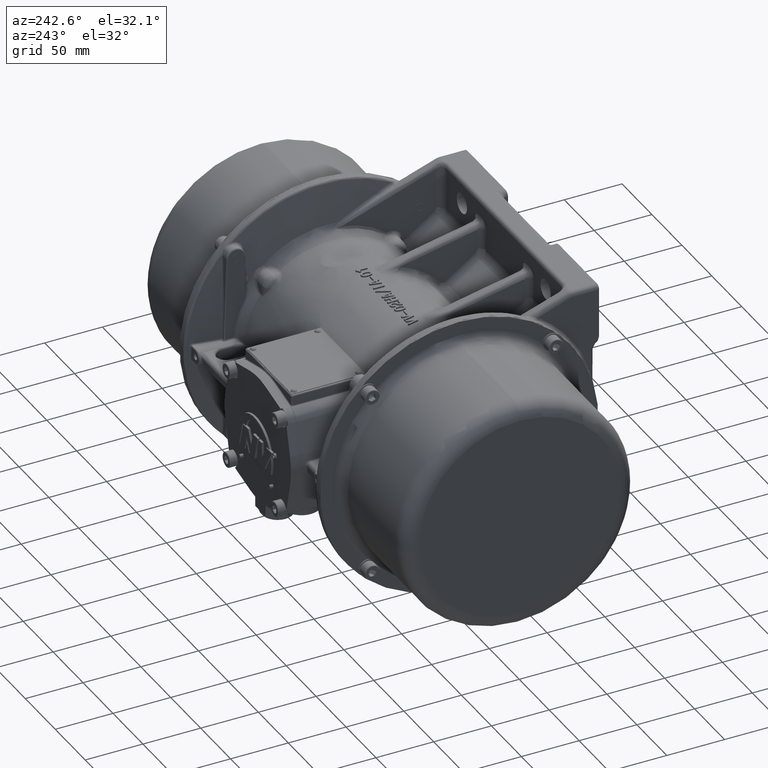
[diagram: clean part render]
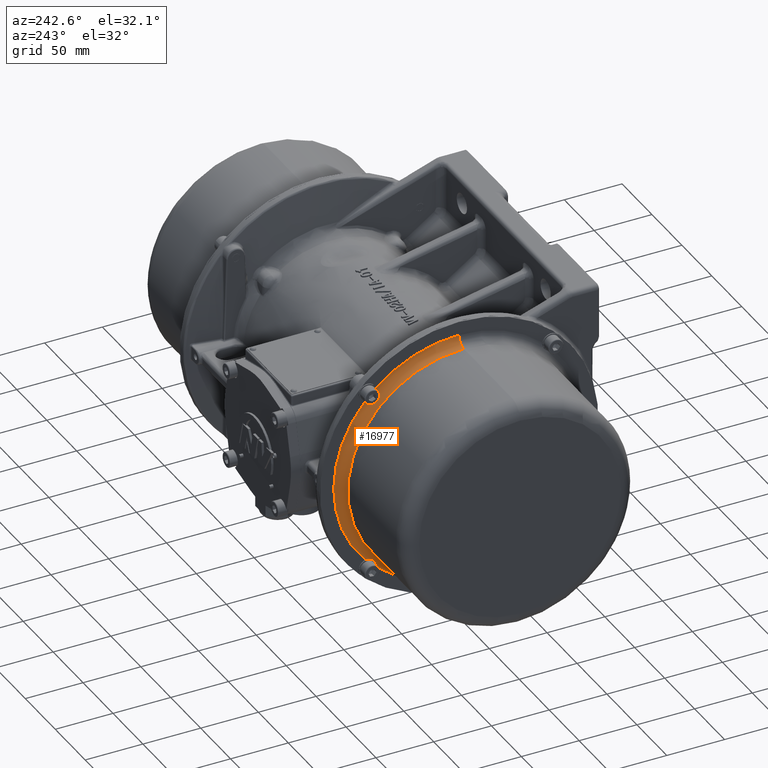
[diagram: same view with one face highlighted and labeled with its STEP entity id]
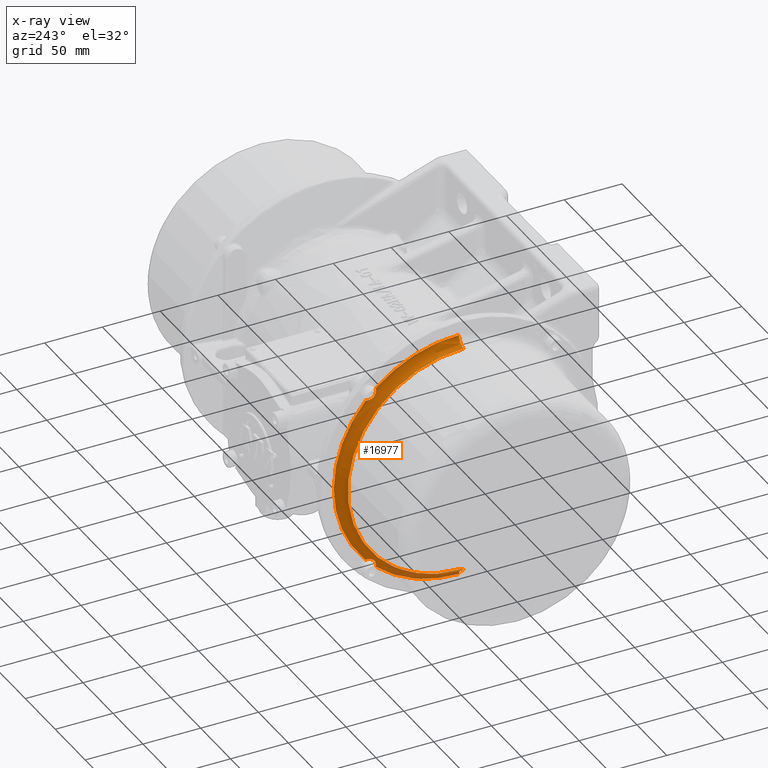
[diagram: x-ray of the same camera — body ghosted, the highlighted face saturated]
A machine part, auxiliary view. The second image highlights one B-rep face of the part: STEP entity #16977.
The next image is the same camera in x-ray: the body ghosted, the highlighted face saturated — about 9% of this face is hidden behind the body in this view.
In plain terms, the highlighted toroidal blend (fillet) surface has major radius 108.5 mm and minor (blend) radius 8 mm.
Its self-contained STEP definition (entity closure, byte-faithful):
#6 = CARTESIAN_POINT ( 'NONE',  ( -122.5613321759554000, 108.2513363668461900, -80.72937766513649600 ) ) ;
#124 = CARTESIAN_POINT ( 'NONE',  ( -123.3354597213276500, 111.1293194311671300, 73.55000624773522600 ) ) ;
#167 = VERTEX_POINT ( 'NONE', #87462 ) ;
#292 = CARTESIAN_POINT ( 'NONE',  ( -122.5579501043699900, 108.6750303481876000, -80.66188371163390500 ) ) ;
#311 = CARTESIAN_POINT ( 'NONE',  ( -122.5579501043699900, 117.0123286705273700, 72.26510747663309100 ) ) ;
#349 = DIRECTION ( 'NONE',  ( 1.000000000000000000, -6.427852285303269600E-024, 1.572670343229675200E-024 ) ) ;
#491 = CARTESIAN_POINT ( 'NONE',  ( -123.2297239065619200, 109.1315925297409300, -75.85402051819363600 ) ) ;
#659 = CARTESIAN_POINT ( 'NONE',  ( -123.0777003674439700, 108.6769675464618200, -76.79996322004755900 ) ) ;
#798 = DIRECTION ( 'NONE',  ( 0.0000000000000000000, -3.339511258819159000E-013, 1.000000000000000000 ) ) ;
#1159 = EDGE_CURVE ( 'NONE', #195588, #30115, #26000, .T. ) ;
#1414 = CIRCLE ( 'NONE', #27655, 100.5000000000000000 ) ;
#2177 = CARTESIAN_POINT ( 'NONE',  ( -122.5579501043699900, 117.0011610117190100, 72.30917750026169700 ) ) ;
#2871 = CARTESIAN_POINT ( 'NONE',  ( -123.3579501043700000, 110.0629849122629900, 74.55487871149699700 ) ) ;
#5145 = ORIENTED_EDGE ( 'NONE', *, *, #82224, .F. ) ;
#6796 = CARTESIAN_POINT ( 'NONE',  ( -122.5579501043699800, 117.0827364345335200, 72.18605002484682100 ) ) ;
#7011 = CARTESIAN_POINT ( 'NONE',  ( -122.5579501043699900, 116.0712988640120100, -73.33614846653719600 ) ) ;
#8122 = DIRECTION ( 'NONE',  ( 0.0000000000000000000, -7.546446826369151700E-015, 1.000000000000000000 ) ) ;
#8616 = CARTESIAN_POINT ( 'NONE',  ( -123.2197845788611200, 110.3270893576449400, -74.71648922973716400 ) ) ;
#8846 = CARTESIAN_POINT ( 'NONE',  ( -122.8703597378881700, 108.3106062283509600, 77.96833268359702600 ) ) ;
#9354 = EDGE_CURVE ( 'NONE', #80650, #85221, #69789, .T. ) ;
#9707 = CARTESIAN_POINT ( 'NONE',  ( -123.3195652554795600, 110.7686448890364900, 73.96215836678423700 ) ) ;
#9742 = DIRECTION ( 'NONE',  ( 0.0000000000000000000, -7.546446826369151700E-015, 1.000000000000000000 ) ) ;
#10825 = ORIENTED_EDGE ( 'NONE', *, *, #103260, .F. ) ;
#11093 = ORIENTED_EDGE ( 'NONE', *, *, #111091, .F. ) ;
#11134 = EDGE_CURVE ( 'NONE', #25755, #151514, #191234, .T. ) ;
#11506 = DIRECTION ( 'NONE',  ( 6.427852285303257800E-024, 1.000000000000000000, 7.521760991835440300E-015 ) ) ;
#12247 = ORIENTED_EDGE ( 'NONE', *, *, #162262, .F. ) ;
#12815 = VERTEX_POINT ( 'NONE', #162184 ) ;
#13177 = CARTESIAN_POINT ( 'NONE',  ( -122.5613321759554000, 116.8378143486718000, 72.14289968331080200 ) ) ;
#13249 = CARTESIAN_POINT ( 'NONE',  ( -123.3354597213276500, 109.6584429312705100, -75.02088274763185900 ) ) ;
#13428 = CARTESIAN_POINT ( 'NONE',  ( -123.1854683903486300, 112.2621278307402300, -72.85792781990127800 ) ) ;
#14576 = B_SPLINE_CURVE_WITH_KNOTS ( 'NONE', 3,
 ( #154886, #17404, #63689, #170982 ),
 .UNSPECIFIED., .F., .F.,
 ( 4, 4 ),
 ( 0.005990977083338102700, 0.006953269603852226700 ),
 .UNSPECIFIED. ) ;
#14754 = CARTESIAN_POINT ( 'NONE',  ( -122.7021810027953400, 115.1508916833719700, 72.05479074414938600 ) ) ;
#15383 = CARTESIAN_POINT ( 'NONE',  ( -122.5717823546717800, 108.1841467832871800, -80.30759436908324700 ) ) ;
#15565 = VERTEX_POINT ( 'NONE', #7011 ) ;
#15666 = DIRECTION ( 'NONE',  ( -6.427852285303257800E-024, -1.000000000000000000, -7.399296311920705100E-015 ) ) ;
#16043 = CARTESIAN_POINT ( 'NONE',  ( -123.1744306905771400, 108.9330873650279600, -76.22230043103246500 ) ) ;
#16512 = CARTESIAN_POINT ( 'NONE',  ( -122.5579501043699800, 108.5338275814955600, -80.68437714648536000 ) ) ;
#16977 = ADVANCED_FACE ( 'NONE', ( #175269 ), #84038, .F. ) ;
#17404 = CARTESIAN_POINT ( 'NONE',  ( -122.5722820407507800, 116.4740746370359700, -72.08722828413618800 ) ) ;
#19060 = VERTEX_POINT ( 'NONE', #158795 ) ;
#19294 = EDGE_CURVE ( 'NONE', #33399, #189183, #155827, .T. ) ;
#19648 = CARTESIAN_POINT ( 'NONE',  ( -130.5579501043699800, 36.10843668353531700, -100.5000000000000300 ) ) ;
#20050 = B_SPLINE_CURVE_WITH_KNOTS ( 'NONE', 3,
 ( #134947, #27692, #58521, #165834, #73966, #181245 ),
 .UNSPECIFIED., .F., .F.,
 ( 4, 2, 4 ),
 ( 1.469623195646913200E-006, 0.0006863908567234843000, 0.001371312090251321600 ),
 .UNSPECIFIED. ) ;
#20052 = B_SPLINE_CURVE_WITH_KNOTS ( 'NONE', 3,
 ( #89940, #74495, #166354, #105365, #13428, #120776, #28907, #136162, #44289, #151595, #59748, #167028, #75162, #182473 ),
 .UNSPECIFIED., .F., .F.,
 ( 4, 2, 2, 2, 2, 2, 4 ),
 ( 6.759244171246788800E-006, 0.001465545043678568500, 0.002194937943432229600, 0.002924330843185890200, 0.004383116642693250500, 0.005112509542446928000, 0.005841902442200604600 ),
 .UNSPECIFIED. ) ;
#21239 = EDGE_CURVE ( 'NONE', #179808, #135285, #90609, .T. ) ;
#22031 = VERTEX_POINT ( 'NONE', #149826 ) ;
#23272 = AXIS2_PLACEMENT_3D ( 'NONE', #193561, #101634, #9742 ) ;
#23736 = CARTESIAN_POINT ( 'NONE',  ( -122.5579501043699900, 108.3735441601685600, -80.90389198699219300 ) ) ;
#24317 = CARTESIAN_POINT ( 'NONE',  ( -122.7210856310092600, 108.1796978558058700, 78.92898080482778800 ) ) ;
#24440 = CARTESIAN_POINT ( 'NONE',  ( -122.5579501043699900, 36.10843668353454900, -2.428612866556249800E-014 ) ) ;
#25131 = CARTESIAN_POINT ( 'NONE',  ( -123.2856165839070900, 110.7877863159157500, 74.04664813753129200 ) ) ;
#25678 = VERTEX_POINT ( 'NONE', #79686 ) ;
#25751 = CARTESIAN_POINT ( 'NONE',  ( -122.5579501043699800, 116.0994704469050600, -72.91268019891870700 ) ) ;
#25755 = VERTEX_POINT ( 'NONE', #72792 ) ;
#26000 = B_SPLINE_CURVE_WITH_KNOTS ( 'NONE', 3,
 ( #161779, #54472, #130932, #69926, #177214, #85346, #192692, #100786, #8846, #116164, #24317, #131597, #39721, #146996 ),
 .UNSPECIFIED., .F., .F.,
 ( 4, 2, 2, 2, 2, 2, 4 ),
 ( 6.759244171277499700E-006, 0.001465545043678657200, 0.002194937943432329300, 0.002924330843186001600, 0.004383116642693358900, 0.005112509542447054600, 0.005841902442200751200 ),
 .UNSPECIFIED. ) ;
#26427 = DIRECTION ( 'NONE',  ( 1.000000000000000000, -6.427852285303269600E-024, 1.572670343229675200E-024 ) ) ;
#27031 = CARTESIAN_POINT ( 'NONE',  ( -122.5579501043699900, 108.2992301008276000, -80.99839100736331000 ) ) ;
#27655 = AXIS2_PLACEMENT_3D ( 'NONE', #172278, #80383, #187721 ) ;
#27692 = CARTESIAN_POINT ( 'NONE',  ( -122.5928829201739200, 108.3936807646759800, 79.89079099879036500 ) ) ;
#28907 = CARTESIAN_POINT ( 'NONE',  ( -123.0743223660969200, 112.9281205634740800, -72.55978107281946200 ) ) ;
#28970 = VERTEX_POINT ( 'NONE', #86577 ) ;
#30115 = VERTEX_POINT ( 'NONE', #59741 ) ;
#30171 = CARTESIAN_POINT ( 'NONE',  ( -122.9012599152060700, 113.9037947759092600, 72.24554316488381300 ) ) ;
#30618 = DIRECTION ( 'NONE',  ( 1.000000000000000000, -6.427852285303269600E-024, 1.572670343229675200E-024 ) ) ;
#31463 = AXIS2_PLACEMENT_3D ( 'NONE', #118275, #26427, #133676 ) ;
#31518 = CARTESIAN_POINT ( 'NONE',  ( -123.2297239065619200, 109.1315925297409300, -75.85402051819363600 ) ) ;
#33399 = VERTEX_POINT ( 'NONE', #2177 ) ;
#33704 = EDGE_CURVE ( 'NONE', #30115, #25678, #20050, .T. ) ;
#36186 = CARTESIAN_POINT ( 'NONE',  ( -122.5613321759554000, 116.8378143486718000, 72.14289968331080200 ) ) ;
#36811 = VERTEX_POINT ( 'NONE', #68289 ) ;
#37254 = EDGE_CURVE ( 'NONE', #167, #15565, #91081, .T. ) ;
#37659 = CARTESIAN_POINT ( 'NONE',  ( -122.5582004276956000, 117.0344220635460000, 72.17690659627079700 ) ) ;
#38849 = CARTESIAN_POINT ( 'NONE',  ( -123.3541389122857900, 109.9873616924969900, -74.64090481629510500 ) ) ;
#39147 = CARTESIAN_POINT ( 'NONE',  ( -122.5579501043699900, 108.4176141837970000, -80.89272432818370400 ) ) ;
#39721 = CARTESIAN_POINT ( 'NONE',  ( -122.6308901307638500, 108.1548328666856900, 79.65777428889615000 ) ) ;
#39844 = DIRECTION ( 'NONE',  ( 0.0000000000000000000, -7.546446826369151700E-015, 1.000000000000000000 ) ) ;
#39910 = CARTESIAN_POINT ( 'NONE',  ( -123.3366998761199500, 110.7590252778121000, 73.92046944600318200 ) ) ;
#40555 = CARTESIAN_POINT ( 'NONE',  ( -123.2523588640946000, 110.8065866760744000, 74.13245043888029800 ) ) ;
#40782 = AXIS2_PLACEMENT_3D ( 'NONE', #24440, #131714, #39844 ) ;
#41151 = B_SPLINE_CURVE_WITH_KNOTS ( 'NONE', 3,
 ( #83257, #6796, #129545, #37659 ),
 .UNSPECIFIED., .F., .F.,
 ( 4, 4 ),
 ( 0.003771163714130047800, 0.003844048060589315800 ),
 .UNSPECIFIED. ) ;
#42742 = CARTESIAN_POINT ( 'NONE',  ( -123.2040369804889900, 110.8336397838234000, 74.26204560221040700 ) ) ;
#44289 = CARTESIAN_POINT ( 'NONE',  ( -122.8703597378881500, 114.0767693671322600, -72.20216954481568900 ) ) ;
#44469 = CIRCLE ( 'NONE', #151038, 7.999999999999992900 ) ;
#45580 = CARTESIAN_POINT ( 'NONE',  ( -123.0777003674439000, 112.9083999035827900, 72.56853086292650800 ) ) ;
#46105 = B_SPLINE_CURVE_WITH_KNOTS ( 'NONE', 3,
 ( #135648, #98804, #145015, #53174, #160476, #68586 ),
 .UNSPECIFIED., .F., .F.,
 ( 4, 2, 4 ),
 ( 1.469623195689275200E-006, 0.0006863908567235234400, 0.001371312090251357600 ),
 .UNSPECIFIED. ) ;
#47339 = CARTESIAN_POINT ( 'NONE',  ( -122.5590823514748400, 108.3925961304997700, -80.70687515071273300 ) ) ;
#47942 = B_SPLINE_CURVE_WITH_KNOTS ( 'NONE', 3,
 ( #58137, #58803, #197048, #13177 ),
 .UNSPECIFIED., .F., .F.,
 ( 4, 4 ),
 ( 0.001783121889424923800, 0.002211930208980994400 ),
 .UNSPECIFIED. ) ;
#48319 = CARTESIAN_POINT ( 'NONE',  ( -122.5579501043699800, 109.0211168824539400, 79.99103376336985600 ) ) ;
#48394 = CARTESIAN_POINT ( 'NONE',  ( -122.5579501043699900, 109.4445851500724100, 79.96286218047670500 ) ) ;
#49283 = VERTEX_POINT ( 'NONE', #48394 ) ;
#49300 = CARTESIAN_POINT ( 'NONE',  ( -122.5582004276957900, 108.2853432798062000, -80.92598538001071500 ) ) ;
#49324 = B_SPLINE_CURVE_WITH_KNOTS ( 'NONE', 3,
 ( #89769, #105195, #13249, #120608 ),
 .UNSPECIFIED., .F., .F.,
 ( 4, 4 ),
 ( 0.009111289017836874200, 0.01060359311310200700 ),
 .UNSPECIFIED. ) ;
#52551 = CARTESIAN_POINT ( 'NONE',  ( -123.3579501043700000, 110.6058729452892100, 74.01241202546459900 ) ) ;
#53174 = CARTESIAN_POINT ( 'NONE',  ( -122.5625711872326800, 115.9855577351257500, -72.96936408149713300 ) ) ;
#53942 = VERTEX_POINT ( 'NONE', #139707 ) ;
#54472 = CARTESIAN_POINT ( 'NONE',  ( -123.3434474690855800, 109.7341098292494100, 74.92328296332594600 ) ) ;
#55322 = CARTESIAN_POINT ( 'NONE',  ( -123.3541389122857900, 110.7493414998303900, 73.87892500896158800 ) ) ;
#55519 = DIRECTION ( 'NONE',  ( 1.000000000000000000, -8.000522628532879900E-024, -4.855181942073610000E-024 ) ) ;
#55709 = EDGE_CURVE ( 'NONE', #36811, #169177, #130758, .T. ) ;
#55953 = CARTESIAN_POINT ( 'NONE',  ( -123.2197845788611200, 110.8249259132723800, 74.21865267410972000 ) ) ;
#56581 = CARTESIAN_POINT ( 'NONE',  ( -122.5711323131754800, 116.1276350909211700, -72.48931623478442500 ) ) ;
#58137 = CARTESIAN_POINT ( 'NONE',  ( -122.5579501043699900, 116.7703203951689900, 72.56659366465220300 ) ) ;
#58350 = VERTEX_POINT ( 'NONE', #120208 ) ;
#58521 = CARTESIAN_POINT ( 'NONE',  ( -122.5800147580662600, 108.6215971848610900, 79.88457705412587000 ) ) ;
#58803 = CARTESIAN_POINT ( 'NONE',  ( -122.5579501043699800, 116.7928138300205500, 72.42539089796017000 ) ) ;
#59741 = CARTESIAN_POINT ( 'NONE',  ( -122.6095535024144000, 108.1661125643616000, 79.89933901970781000 ) ) ;
#59748 = CARTESIAN_POINT ( 'NONE',  ( -122.7210856310092900, 115.0374174883630300, -72.07126117227062400 ) ) ;
#61012 = CARTESIAN_POINT ( 'NONE',  ( -123.1744306905771000, 112.3307371145676500, 72.82465068149271300 ) ) ;
#61303 = CARTESIAN_POINT ( 'NONE',  ( -122.5582004276956000, 117.0344220635460000, 72.17690659627079700 ) ) ;
#61674 = CARTESIAN_POINT ( 'NONE',  ( -122.6055289246889400, 108.1536401323828600, -79.88612475557140200 ) ) ;
#62754 = CARTESIAN_POINT ( 'NONE',  ( -122.5579501043699800, 108.2370526636515000, 80.68259749115485100 ) ) ;
#63689 = CARTESIAN_POINT ( 'NONE',  ( -122.5579501043699800, 116.7910341746901700, -72.12861598011620900 ) ) ;
#63762 = EDGE_CURVE ( 'NONE', #112316, #22031, #41151, .T. ) ;
#63764 = CARTESIAN_POINT ( 'NONE',  ( -122.5711323131754800, 108.5977529183197100, 80.01919840738597100 ) ) ;
#64284 = EDGE_CURVE ( 'NONE', #144332, #19060, #1414, .T. ) ;
#64699 = CARTESIAN_POINT ( 'NONE',  ( -122.5579501043699800, 108.2944867083821200, -80.97429975099825600 ) ) ;
#64714 = EDGE_CURVE ( 'NONE', #25755, #144332, #44469, .T. ) ;
#66829 = CARTESIAN_POINT ( 'NONE',  ( -122.5579501043699900, 36.10843668353454900, -2.428612866556249800E-014 ) ) ;
#66858 = CARTESIAN_POINT ( 'NONE',  ( -123.3579501043700000, 110.1208487089999900, -74.49743626175400400 ) ) ;
#67832 = CIRCLE ( 'NONE', #72883, 108.5000000000000000 ) ;
#68289 = CARTESIAN_POINT ( 'NONE',  ( -123.2297239065619000, 111.9624572017288500, 73.02315584620568200 ) ) ;
#68402 = EDGE_CURVE ( 'NONE', #109810, #70671, #67832, .T. ) ;
#68586 = CARTESIAN_POINT ( 'NONE',  ( -122.5579501043699900, 115.9888974826324000, -73.42589449590509800 ) ) ;
#68709 = ORIENTED_EDGE ( 'NONE', *, *, #162664, .F. ) ;
#69706 = CARTESIAN_POINT ( 'NONE',  ( -123.3027505675780000, 110.1124426119524000, -74.66968890398089800 ) ) ;
#69760 = CIRCLE ( 'NONE', #129300, 108.5000000000000000 ) ;
#69789 = B_SPLINE_CURVE_WITH_KNOTS ( 'NONE', 3,
 ( #49300, #142527, #23736, #39147 ),
 .UNSPECIFIED., .F., .F.,
 ( 4, 4 ),
 ( 2.664056320315654000E-006, 0.0001390530303113183300 ),
 .UNSPECIFIED. ) ;
#69926 = CARTESIAN_POINT ( 'NONE',  ( -123.2183372329011900, 109.0792867546673500, 75.93986353227485600 ) ) ;
#70386 = DIRECTION ( 'NONE',  ( 1.000000000000000000, -6.427852285303269600E-024, 1.572670343229675200E-024 ) ) ;
#70671 = VERTEX_POINT ( 'NONE', #120102 ) ;
#71510 = VERTEX_POINT ( 'NONE', #182585 ) ;
#72792 = CARTESIAN_POINT ( 'NONE',  ( -122.5579501043699800, 36.10843668353535200, -108.5000000000000300 ) ) ;
#72833 = EDGE_CURVE ( 'NONE', #15565, #71510, #124172, .T. ) ;
#72883 = AXIS2_PLACEMENT_3D ( 'NONE', #162258, #70386, #177698 ) ;
#73966 = CARTESIAN_POINT ( 'NONE',  ( -122.5579501043699900, 109.3060012182699600, 79.87502932777229600 ) ) ;
#74054 = ORIENTED_EDGE ( 'NONE', *, *, #139507, .F. ) ;
#74495 = CARTESIAN_POINT ( 'NONE',  ( -123.3434474690855000, 111.0317196468612200, -73.62567314571411700 ) ) ;
#74848 = CIRCLE ( 'NONE', #31463, 108.5000000000000000 ) ;
#75162 = CARTESIAN_POINT ( 'NONE',  ( -122.6308901307638700, 115.7662109724313700, -72.04639618315039200 ) ) ;
#76457 = CARTESIAN_POINT ( 'NONE',  ( -123.2297239065619000, 111.9624572017288500, 73.02315584620568200 ) ) ;
#76568 = CARTESIAN_POINT ( 'NONE',  ( -123.2912095676211000, 111.5339865797762300, 73.26577357354312900 ) ) ;
#77115 = CARTESIAN_POINT ( 'NONE',  ( -122.7656191838988200, 108.2041989000963000, -78.61858126582883700 ) ) ;
#78007 = CARTESIAN_POINT ( 'NONE',  ( -123.3541389122857900, 110.7493414998303900, 73.87892500896158800 ) ) ;
#79686 = CARTESIAN_POINT ( 'NONE',  ( -122.5579501043699900, 109.5343311794403900, 79.88046079909720700 ) ) ;
#79874 = ORIENTED_EDGE ( 'NONE', *, *, #180880, .F. ) ;
#80090 = CARTESIAN_POINT ( 'NONE',  ( -123.2527229170104400, 110.7569294865562900, 74.17797073862067200 ) ) ;
#80383 = DIRECTION ( 'NONE',  ( 1.000000000000000000, -6.427852285303269600E-024, 1.572670343229675200E-024 ) ) ;
#80554 = CARTESIAN_POINT ( 'NONE',  ( -122.5579501043699900, 108.2992301008266100, 80.99839100736430500 ) ) ;
#80650 = VERTEX_POINT ( 'NONE', #123658 ) ;
#82214 = DIRECTION ( 'NONE',  ( 0.0000000000000000000, -7.546446826369151700E-015, 1.000000000000000000 ) ) ;
#82224 = EDGE_CURVE ( 'NONE', #71510, #28970, #14576, .T. ) ;
#83257 = CARTESIAN_POINT ( 'NONE',  ( -122.5579501043699900, 117.1068276908986000, 72.19079341729229800 ) ) ;
#84038 = TOROIDAL_SURFACE ( 'NONE', #148633, 108.5000000000000000, 8.000000000000000000 ) ;
#84072 = B_SPLINE_CURVE_WITH_KNOTS ( 'NONE', 3,
 ( #38849, #130705, #161562, #69706, #176981, #85115, #192465, #100547, #8616, #115942 ),
 .UNSPECIFIED., .F., .F.,
 ( 4, 3, 3, 4 ),
 ( 3.170456805018763300E-006, 0.0001414257333477838200, 0.0002823071896710504400, 0.0004232412225506872800 ),
 .UNSPECIFIED. ) ;
#84629 = B_SPLINE_CURVE_WITH_KNOTS ( 'NONE', 3,
 ( #171951, #64699, #187429, #95534 ),
 .UNSPECIFIED., .F., .F.,
 ( 4, 4 ),
 ( 0.003771163714130165700, 0.003844048060589389500 ),
 .UNSPECIFIED. ) ;
#85115 = CARTESIAN_POINT ( 'NONE',  ( -123.2688135342773600, 110.1978949028660400, -74.68886699974800100 ) ) ;
#85221 = VERTEX_POINT ( 'NONE', #132976 ) ;
#85346 = CARTESIAN_POINT ( 'NONE',  ( -123.1134889379072300, 108.7607961120078400, 76.59346989567505700 ) ) ;
#86385 = EDGE_CURVE ( 'NONE', #185817, #187998, #141468, .T. ) ;
#86427 = ORIENTED_EDGE ( 'NONE', *, *, #158578, .F. ) ;
#86577 = CARTESIAN_POINT ( 'NONE',  ( -122.5579501043699900, 117.1068276908995900, -72.19079341729118900 ) ) ;
#87462 = CARTESIAN_POINT ( 'NONE',  ( -122.5579501043699900, 115.9888974826324000, -73.42589449590509800 ) ) ;
#87976 = ORIENTED_EDGE ( 'NONE', *, *, #19294, .F. ) ;
#89769 = CARTESIAN_POINT ( 'NONE',  ( -123.2297239065619200, 109.1315925297409300, -75.85402051819363600 ) ) ;
#89940 = CARTESIAN_POINT ( 'NONE',  ( -123.3579501043700000, 110.6633153950322000, -73.95454822872760300 ) ) ;
#90609 = CIRCLE ( 'NONE', #169545, 105.0128808451674200 ) ;
#91081 = CIRCLE ( 'NONE', #23272, 108.5000000000000000 ) ;
#91246 = CARTESIAN_POINT ( 'NONE',  ( -122.5613321759554000, 116.8378143486718000, 72.14289968331080200 ) ) ;
#92227 = CARTESIAN_POINT ( 'NONE',  ( -122.5579501043699900, 36.10843668353454900, -2.428612866556249800E-014 ) ) ;
#92539 = CARTESIAN_POINT ( 'NONE',  ( -122.9738486413220600, 108.4625180626973000, -77.39259407208797400 ) ) ;
#92676 = DIRECTION ( 'NONE',  ( 1.000000000000000000, -0.0000000000000000000, -0.0000000000000000000 ) ) ;
#93087 = ORIENTED_EDGE ( 'NONE', *, *, #9354, .F. ) ;
#94824 = EDGE_CURVE ( 'NONE', #12815, #58350, #84072, .T. ) ;
#95000 = CARTESIAN_POINT ( 'NONE',  ( -122.5972126986218200, 108.1744910102812000, 80.04735626203441300 ) ) ;
#95238 = EDGE_CURVE ( 'NONE', #58350, #179808, #197188, .T. ) ;
#95534 = CARTESIAN_POINT ( 'NONE',  ( -122.5582004276957900, 108.2853432798062000, -80.92598538001071500 ) ) ;
#95547 = CARTESIAN_POINT ( 'NONE',  ( -123.3040262920500100, 110.6810069062194900, 74.09475921666597700 ) ) ;
#97167 = EDGE_CURVE ( 'NONE', #70671, #19060, #115028, .T. ) ;
#97429 = EDGE_CURVE ( 'NONE', #187998, #195588, #172602, .T. ) ;
#98804 = CARTESIAN_POINT ( 'NONE',  ( -122.5928829201740200, 115.9992276823258400, -72.28524408114070400 ) ) ;
#100057 = DIRECTION ( 'NONE',  ( 1.000000000000000000, -6.427852285303269600E-024, 1.572670343229675200E-024 ) ) ;
#100547 = CARTESIAN_POINT ( 'NONE',  ( -123.2358982125663000, 110.2838949698285900, -74.70743635973983000 ) ) ;
#100786 = CARTESIAN_POINT ( 'NONE',  ( -122.9543781059525000, 108.4265181413234600, 77.50264497616134900 ) ) ;
#100839 = CARTESIAN_POINT ( 'NONE',  ( -123.3579501043700000, 110.6058729452892100, 74.01241202546459900 ) ) ;
#101634 = DIRECTION ( 'NONE',  ( 1.000000000000000000, -6.427852285303269600E-024, 1.572670343229675200E-024 ) ) ;
#101880 = B_SPLINE_CURVE_WITH_KNOTS ( 'NONE', 3,
 ( #140183, #48319, #63764, #171048 ),
 .UNSPECIFIED., .F., .F.,
 ( 4, 4 ),
 ( 0.0009380970038950086000, 0.002211269880252528900 ),
 .UNSPECIFIED. ) ;
#102687 = ORIENTED_EDGE ( 'NONE', *, *, #164422, .F. ) ;
#103260 = EDGE_CURVE ( 'NONE', #135285, #115434, #20052, .T. ) ;
#103437 = CARTESIAN_POINT ( 'NONE',  ( -130.5579501043699800, 36.10843668353373200, 108.4999999999999700 ) ) ;
#105195 = CARTESIAN_POINT ( 'NONE',  ( -123.2912095676211400, 109.3742102570784000, -75.42554989624098000 ) ) ;
#105365 = CARTESIAN_POINT ( 'NONE',  ( -123.2183372329012300, 112.0483002158101200, -72.97085007113207700 ) ) ;
#106289 = CARTESIAN_POINT ( 'NONE',  ( -122.5580331538076800, 117.0234136553509600, 72.22101635204370500 ) ) ;
#106409 = ORIENTED_EDGE ( 'NONE', *, *, #196865, .F. ) ;
#106643 = CARTESIAN_POINT ( 'NONE',  ( -122.6055289246889300, 115.9945614391067200, 72.04520344884755900 ) ) ;
#106918 = B_SPLINE_CURVE_WITH_KNOTS ( 'NONE', 3,
 ( #61303, #106289, #311, #107623 ),
 .UNSPECIFIED., .F., .F.,
 ( 4, 4 ),
 ( 2.664056320231490700E-006, 0.0001390530303113148000 ),
 .UNSPECIFIED. ) ;
#107433 = CARTESIAN_POINT ( 'NONE',  ( -123.3541389122857900, 110.7493414998303900, 73.87892500896158800 ) ) ;
#107605 = CARTESIAN_POINT ( 'NONE',  ( -130.5579501043699800, 36.10843668353535200, -108.5000000000000300 ) ) ;
#107623 = CARTESIAN_POINT ( 'NONE',  ( -122.5579501043699900, 117.0011610117190100, 72.30917750026169700 ) ) ;
#107652 = DIRECTION ( 'NONE',  ( 0.0000000000000000000, -7.546446826369151700E-015, 1.000000000000000000 ) ) ;
#107985 = CARTESIAN_POINT ( 'NONE',  ( -123.1115497601462600, 108.7574189590136200, -76.60387345078055400 ) ) ;
#108386 = CARTESIAN_POINT ( 'NONE',  ( -122.5972126986218200, 108.1744910102812000, 80.04735626203441300 ) ) ;
#109810 = VERTEX_POINT ( 'NONE', #80554 ) ;
#111091 = EDGE_CURVE ( 'NONE', #22031, #33399, #106918, .T. ) ;
#111787 = CARTESIAN_POINT ( 'NONE',  ( -123.2527229170104300, 110.2864074221560300, -74.64849280302104300 ) ) ;
#112224 = ORIENTED_EDGE ( 'NONE', *, *, #63762, .F. ) ;
#112316 = VERTEX_POINT ( 'NONE', #134476 ) ;
#112805 = ORIENTED_EDGE ( 'NONE', *, *, #37254, .F. ) ;
#112999 = AXIS2_PLACEMENT_3D ( 'NONE', #103437, #11506, #118831 ) ;
#114284 = EDGE_CURVE ( 'NONE', #49283, #174981, #101880, .T. ) ;
#115028 = CIRCLE ( 'NONE', #112999, 7.999999999999992900 ) ;
#115434 = VERTEX_POINT ( 'NONE', #116857 ) ;
#115942 = CARTESIAN_POINT ( 'NONE',  ( -123.2040369804887900, 110.3704822857456000, -74.72520310028819800 ) ) ;
#116164 = CARTESIAN_POINT ( 'NONE',  ( -122.7569539741658800, 108.2039762621429300, 78.68540744410411500 ) ) ;
#116593 = CARTESIAN_POINT ( 'NONE',  ( -122.5579501043699900, 116.7703203951689900, 72.56659366465220300 ) ) ;
#116857 = CARTESIAN_POINT ( 'NONE',  ( -122.6095535024144000, 116.0077757032430000, -72.05767588082630900 ) ) ;
#117003 = CARTESIAN_POINT ( 'NONE',  ( -123.3027505675780000, 110.7781255875162000, 74.00400592841720000 ) ) ;
#117603 = B_SPLINE_CURVE_WITH_KNOTS ( 'NONE', 3,
 ( #6, #15383, #61674, #168982, #77115, #184423, #92539, #659, #107985, #16043, #123377, #31518 ),
 .UNSPECIFIED., .F., .F.,
 ( 4, 2, 2, 2, 2, 4 ),
 ( 0.004041078303690509400, 0.005308630982227095600, 0.006576183660763681800, 0.007843736339300267200, 0.008477512678568570700, 0.009111289017836874200 ),
 .UNSPECIFIED. ) ;
#118275 = CARTESIAN_POINT ( 'NONE',  ( -122.5579501043699900, 36.10843668353454900, -2.428612866556249800E-014 ) ) ;
#118831 = DIRECTION ( 'NONE',  ( 0.0000000000000000000, -7.806255641895638200E-015, 1.000000000000000000 ) ) ;
#120102 = CARTESIAN_POINT ( 'NONE',  ( -122.5579501043699800, 36.10843668353373200, 108.4999999999999700 ) ) ;
#120208 = CARTESIAN_POINT ( 'NONE',  ( -123.2040369804887900, 110.3704822857456000, -74.72520310028819800 ) ) ;
#120608 = CARTESIAN_POINT ( 'NONE',  ( -123.3541389122857900, 109.9873616924969900, -74.64090481629510500 ) ) ;
#120776 = CARTESIAN_POINT ( 'NONE',  ( -123.1134889379072600, 112.7019065792102900, -72.65235942847256500 ) ) ;
#120898 = B_SPLINE_CURVE_WITH_KNOTS ( 'NONE', 3,
 ( #108386, #123780, #62754, #170047 ),
 .UNSPECIFIED., .F., .F.,
 ( 4, 4 ),
 ( 0.005990977083338057600, 0.006953269603852306500 ),
 .UNSPECIFIED. ) ;
#121400 = CARTESIAN_POINT ( 'NONE',  ( -122.5717823546717400, 116.4160310526184600, 72.07571009975184500 ) ) ;
#122090 = CARTESIAN_POINT ( 'NONE',  ( -122.7656191838987800, 114.7270179493641000, 72.09576221656104200 ) ) ;
#123001 = DIRECTION ( 'NONE',  ( 0.0000000000000000000, 7.806255641895638200E-015, -1.000000000000000000 ) ) ;
#123377 = CARTESIAN_POINT ( 'NONE',  ( -123.2036111609712600, 109.0285536279773200, -76.03599049544344300 ) ) ;
#123658 = CARTESIAN_POINT ( 'NONE',  ( -122.5582004276957900, 108.2853432798062000, -80.92598538001071500 ) ) ;
#123780 = CARTESIAN_POINT ( 'NONE',  ( -122.5722820407507900, 108.1956649676714800, 80.36563795350061000 ) ) ;
#123835 = CARTESIAN_POINT ( 'NONE',  ( -122.5579501043699900, 108.6750303481876000, -80.66188371163390500 ) ) ;
#124172 = B_SPLINE_CURVE_WITH_KNOTS ( 'NONE', 3,
 ( #133037, #25751, #56581, #163892 ),
 .UNSPECIFIED., .F., .F.,
 ( 4, 4 ),
 ( 0.0009380970038948249300, 0.002211269880252437400 ),
 .UNSPECIFIED. ) ;
#125096 = ORIENTED_EDGE ( 'NONE', *, *, #72833, .F. ) ;
#126707 = ORIENTED_EDGE ( 'NONE', *, *, #97167, .F. ) ;
#129300 = AXIS2_PLACEMENT_3D ( 'NONE', #66829, #174122, #82214 ) ;
#129545 = CARTESIAN_POINT ( 'NONE',  ( -122.5580339043414600, 117.0586012582767800, 72.18142087456413900 ) ) ;
#130705 = CARTESIAN_POINT ( 'NONE',  ( -123.3366998761200400, 110.0289061295385600, -74.65058859427686900 ) ) ;
#130758 = B_SPLINE_CURVE_WITH_KNOTS ( 'NONE', 3,
 ( #183851, #76568, #124, #107433 ),
 .UNSPECIFIED., .F., .F.,
 ( 4, 4 ),
 ( 0.009111289017836940100, 0.01060359311310198200 ),
 .UNSPECIFIED. ) ;
#130932 = CARTESIAN_POINT ( 'NONE',  ( -123.3039352448320300, 109.4482280194640300, 75.31597421575232000 ) ) ;
#131156 = ORIENTED_EDGE ( 'NONE', *, *, #86385, .F. ) ;
#131430 = ORIENTED_EDGE ( 'NONE', *, *, #68402, .F. ) ;
#131597 = CARTESIAN_POINT ( 'NONE',  ( -122.6580401792331300, 108.1551946763153200, 79.41543168820591300 ) ) ;
#131714 = DIRECTION ( 'NONE',  ( 1.000000000000000000, -6.427852285303269600E-024, 1.572670343229675200E-024 ) ) ;
#132428 = CARTESIAN_POINT ( 'NONE',  ( -123.2688135342771600, 110.7973036832831200, 74.08945821933075100 ) ) ;
#132976 = CARTESIAN_POINT ( 'NONE',  ( -122.5579501043699900, 108.4176141837970000, -80.89272432818370400 ) ) ;
#133037 = CARTESIAN_POINT ( 'NONE',  ( -122.5579501043699900, 116.0712988640120100, -73.33614846653719600 ) ) ;
#133676 = DIRECTION ( 'NONE',  ( 0.0000000000000000000, -7.546446826369151700E-015, 1.000000000000000000 ) ) ;
#134313 = CARTESIAN_POINT ( 'NONE',  ( -123.3579501043700000, 110.6633153950322000, -73.95454822872760300 ) ) ;
#134463 = EDGE_CURVE ( 'NONE', #115434, #167, #46105, .T. ) ;
#134476 = CARTESIAN_POINT ( 'NONE',  ( -122.5579501043699900, 117.1068276908986000, 72.19079341729229800 ) ) ;
#134947 = CARTESIAN_POINT ( 'NONE',  ( -122.6095535024144000, 108.1661125643616000, 79.89933901970781000 ) ) ;
#135285 = VERTEX_POINT ( 'NONE', #134313 ) ;
#135648 = CARTESIAN_POINT ( 'NONE',  ( -122.6095535024144000, 116.0077757032430000, -72.05767588082630900 ) ) ;
#136162 = CARTESIAN_POINT ( 'NONE',  ( -122.9543781059524900, 113.6110816596965900, -72.31808145778816800 ) ) ;
#137452 = CARTESIAN_POINT ( 'NONE',  ( -122.9738486413221100, 113.5010307556232300, 72.35408137916203900 ) ) ;
#137886 = DIRECTION ( 'NONE',  ( -1.572670343229723500E-024, -7.504726454011251000E-015, 1.000000000000000000 ) ) ;
#138895 = B_SPLINE_CURVE_WITH_KNOTS ( 'NONE', 3,
 ( #123835, #16512, #47339, #154654 ),
 .UNSPECIFIED., .F., .F.,
 ( 4, 4 ),
 ( 0.001783121889424839700, 0.002211930208980869000 ),
 .UNSPECIFIED. ) ;
#139507 = EDGE_CURVE ( 'NONE', #174981, #109810, #120898, .T. ) ;
#139707 = CARTESIAN_POINT ( 'NONE',  ( -122.5613321759554000, 108.2513363668461900, -80.72937766513649600 ) ) ;
#140183 = CARTESIAN_POINT ( 'NONE',  ( -122.5579501043699900, 109.4445851500724100, 79.96286218047670500 ) ) ;
#141468 = B_SPLINE_CURVE_WITH_KNOTS ( 'NONE', 3,
 ( #144408, #80090, #95547, #52551 ),
 .UNSPECIFIED., .F., .F.,
 ( 4, 4 ),
 ( 0.0001197512664345289900, 0.0004910681996110157500 ),
 .UNSPECIFIED. ) ;
#142527 = CARTESIAN_POINT ( 'NONE',  ( -122.5580331538076100, 108.3294530355791200, -80.91497697181576100 ) ) ;
#142570 = ORIENTED_EDGE ( 'NONE', *, *, #94824, .F. ) ;
#143489 = ORIENTED_EDGE ( 'NONE', *, *, #11134, .F. ) ;
#143918 = VERTEX_POINT ( 'NONE', #491 ) ;
#144332 = VERTEX_POINT ( 'NONE', #19648 ) ;
#144408 = CARTESIAN_POINT ( 'NONE',  ( -123.2040369804889900, 110.8336397838234000, 74.26204560221040700 ) ) ;
#145015 = CARTESIAN_POINT ( 'NONE',  ( -122.5800147580662000, 115.9930137376613300, -72.51316050132575700 ) ) ;
#145758 = CIRCLE ( 'NONE', #40782, 108.5000000000000000 ) ;
#146996 = CARTESIAN_POINT ( 'NONE',  ( -122.6095535024144000, 108.1661125643616000, 79.89933901970781000 ) ) ;
#147257 = B_SPLINE_CURVE_WITH_KNOTS ( 'NONE', 3,
 ( #55322, #39910, #9707, #117003, #25131, #132428, #40555, #147812, #55953, #163280 ),
 .UNSPECIFIED., .F., .F.,
 ( 4, 3, 3, 4 ),
 ( 3.170456804922176200E-006, 0.0001414257333478745700, 0.0002823071896710694100, 0.0004232412225506835900 ),
 .UNSPECIFIED. ) ;
#147361 = CARTESIAN_POINT ( 'NONE',  ( -123.3579501043700000, 36.10843668353454900, -2.428612871310119600E-014 ) ) ;
#147812 = CARTESIAN_POINT ( 'NONE',  ( -123.2358982125661000, 110.8158730432749500, 74.17545828629330600 ) ) ;
#148337 = ORIENTED_EDGE ( 'NONE', *, *, #95238, .F. ) ;
#148633 = AXIS2_PLACEMENT_3D ( 'NONE', #168123, #30618, #137886 ) ;
#149826 = CARTESIAN_POINT ( 'NONE',  ( -122.5582004276956000, 117.0344220635460000, 72.17690659627079700 ) ) ;
#151038 = AXIS2_PLACEMENT_3D ( 'NONE', #107605, #15666, #123001 ) ;
#151514 = VERTEX_POINT ( 'NONE', #27031 ) ;
#151595 = CARTESIAN_POINT ( 'NONE',  ( -122.7569539741658800, 114.7938441276393300, -72.09553957860762800 ) ) ;
#152888 = CARTESIAN_POINT ( 'NONE',  ( -123.1115497601462300, 112.7123101343157700, 72.64898227547834600 ) ) ;
#154074 = AXIS2_PLACEMENT_3D ( 'NONE', #184566, #92676, #798 ) ;
#154654 = CARTESIAN_POINT ( 'NONE',  ( -122.5613321759554000, 108.2513363668461900, -80.72937766513649600 ) ) ;
#154886 = CARTESIAN_POINT ( 'NONE',  ( -122.5972126986218200, 116.1557929455698000, -72.06605432674589900 ) ) ;
#155189 = CARTESIAN_POINT ( 'NONE',  ( -123.3579501043700000, 110.1208487089999900, -74.49743626175400400 ) ) ;
#155827 = CIRCLE ( 'NONE', #195105, 108.5000000000000000 ) ;
#157148 = AXIS2_PLACEMENT_3D ( 'NONE', #191982, #100057, #8122 ) ;
#158070 = CARTESIAN_POINT ( 'NONE',  ( -123.2040369804887900, 110.3704822857456000, -74.72520310028819800 ) ) ;
#158578 = EDGE_CURVE ( 'NONE', #143918, #12815, #49324, .T. ) ;
#158733 = CARTESIAN_POINT ( 'NONE',  ( -123.3040262920499800, 110.2031959002013500, -74.57257022268426300 ) ) ;
#158795 = CARTESIAN_POINT ( 'NONE',  ( -130.5579501043699800, 36.10843668353379600, 100.4999999999999700 ) ) ;
#160476 = CARTESIAN_POINT ( 'NONE',  ( -122.5579501043699900, 115.9834660113076600, -73.19756453473466700 ) ) ;
#161244 = ORIENTED_EDGE ( 'NONE', *, *, #21239, .F. ) ;
#161375 = ORIENTED_EDGE ( 'NONE', *, *, #167721, .F. ) ;
#161455 = VERTEX_POINT ( 'NONE', #292 ) ;
#161562 = CARTESIAN_POINT ( 'NONE',  ( -123.3195652554795300, 110.0705950503195000, -74.66020820550122000 ) ) ;
#161779 = CARTESIAN_POINT ( 'NONE',  ( -123.3579501043700000, 110.0629849122629900, 74.55487871149699700 ) ) ;
#162070 = ORIENTED_EDGE ( 'NONE', *, *, #175633, .F. ) ;
#162184 = CARTESIAN_POINT ( 'NONE',  ( -123.3541389122857900, 109.9873616924969900, -74.64090481629510500 ) ) ;
#162258 = CARTESIAN_POINT ( 'NONE',  ( -122.5579501043699900, 36.10843668353454900, -2.428612866556249800E-014 ) ) ;
#162262 = EDGE_CURVE ( 'NONE', #189183, #167228, #47942, .T. ) ;
#162664 = EDGE_CURVE ( 'NONE', #85221, #161455, #74848, .T. ) ;
#162827 = DIRECTION ( 'NONE',  ( 0.0000000000000000000, -1.000000000000000000, -1.429967255717201100E-013 ) ) ;
#163280 = CARTESIAN_POINT ( 'NONE',  ( -123.2040369804889900, 110.8336397838234000, 74.26204560221040700 ) ) ;
#163681 = ORIENTED_EDGE ( 'NONE', *, *, #33704, .F. ) ;
#163892 = CARTESIAN_POINT ( 'NONE',  ( -122.5972126986218200, 116.1557929455698000, -72.06605432674589900 ) ) ;
#164422 = EDGE_CURVE ( 'NONE', #28970, #112316, #69760, .T. ) ;
#165834 = CARTESIAN_POINT ( 'NONE',  ( -122.5625711872327200, 109.0778007650324800, 79.87712105159035000 ) ) ;
#166354 = CARTESIAN_POINT ( 'NONE',  ( -123.3039352448320200, 111.4244108992876100, -73.33979133592875100 ) ) ;
#167028 = CARTESIAN_POINT ( 'NONE',  ( -122.6580401792331300, 115.5238683717411200, -72.04675799278003000 ) ) ;
#167228 = VERTEX_POINT ( 'NONE', #36186 ) ;
#167721 = EDGE_CURVE ( 'NONE', #25678, #49283, #145758, .T. ) ;
#168123 = CARTESIAN_POINT ( 'NONE',  ( -130.5579501043699800, 36.10843668353454900, -2.428612867814384800E-014 ) ) ;
#168345 = CARTESIAN_POINT ( 'NONE',  ( -123.2036111609712200, 112.1444271789786600, 72.92011694444204300 ) ) ;
#168982 = CARTESIAN_POINT ( 'NONE',  ( -122.7021810027953000, 108.1632274276846700, -79.04245499983670700 ) ) ;
#169177 = VERTEX_POINT ( 'NONE', #78007 ) ;
#169545 = AXIS2_PLACEMENT_3D ( 'NONE', #147361, #55519, #162827 ) ;
#170047 = CARTESIAN_POINT ( 'NONE',  ( -122.5579501043699900, 108.2992301008266100, 80.99839100736430500 ) ) ;
#170982 = CARTESIAN_POINT ( 'NONE',  ( -122.5579501043699900, 117.1068276908995900, -72.19079341729118900 ) ) ;
#171048 = CARTESIAN_POINT ( 'NONE',  ( -122.5972126986218200, 108.1744910102812000, 80.04735626203441300 ) ) ;
#171951 = CARTESIAN_POINT ( 'NONE',  ( -122.5579501043699900, 108.2992301008276000, -80.99839100736331000 ) ) ;
#172278 = CARTESIAN_POINT ( 'NONE',  ( -130.5579501043699800, 36.10843668353454900, -2.428612867814384800E-014 ) ) ;
#172602 = CIRCLE ( 'NONE', #154074, 105.0128808451674000 ) ;
#173431 = ORIENTED_EDGE ( 'NONE', *, *, #64284, .T. ) ;
#174122 = DIRECTION ( 'NONE',  ( 1.000000000000000000, -6.427852285303269600E-024, 1.572670343229675200E-024 ) ) ;
#174429 = ORIENTED_EDGE ( 'NONE', *, *, #183837, .F. ) ;
#174981 = VERTEX_POINT ( 'NONE', #95000 ) ;
#175269 = FACE_OUTER_BOUND ( 'NONE', #196529, .T. ) ;
#175633 = EDGE_CURVE ( 'NONE', #53942, #143918, #117603, .T. ) ;
#176788 = ORIENTED_EDGE ( 'NONE', *, *, #55709, .F. ) ;
#176981 = CARTESIAN_POINT ( 'NONE',  ( -123.2856165839070900, 110.1550848210665200, -74.67934963238045000 ) ) ;
#177214 = CARTESIAN_POINT ( 'NONE',  ( -123.1854683903486000, 108.9663645034365200, 76.15369114720500900 ) ) ;
#177698 = DIRECTION ( 'NONE',  ( 0.0000000000000000000, -7.546446826369151700E-015, 1.000000000000000000 ) ) ;
#179583 = ORIENTED_EDGE ( 'NONE', *, *, #134463, .F. ) ;
#179808 = VERTEX_POINT ( 'NONE', #155189 ) ;
#179978 = EDGE_CURVE ( 'NONE', #151514, #80650, #84629, .T. ) ;
#180880 = EDGE_CURVE ( 'NONE', #169177, #185817, #147257, .T. ) ;
#181245 = CARTESIAN_POINT ( 'NONE',  ( -122.5579501043699900, 109.5343311794403900, 79.88046079909720700 ) ) ;
#182473 = CARTESIAN_POINT ( 'NONE',  ( -122.6095535024144000, 116.0077757032430000, -72.05767588082630900 ) ) ;
#182585 = CARTESIAN_POINT ( 'NONE',  ( -122.5972126986218200, 116.1557929455698000, -72.06605432674589900 ) ) ;
#183567 = ORIENTED_EDGE ( 'NONE', *, *, #114284, .F. ) ;
#183837 = EDGE_CURVE ( 'NONE', #161455, #53942, #138895, .T. ) ;
#183851 = CARTESIAN_POINT ( 'NONE',  ( -123.2297239065619000, 111.9624572017288500, 73.02315584620568200 ) ) ;
#184423 = CARTESIAN_POINT ( 'NONE',  ( -122.9012599152060700, 108.3539798484191000, -77.79535809237398800 ) ) ;
#184566 = CARTESIAN_POINT ( 'NONE',  ( -123.3579501043700000, 36.10843668353454900, -2.428612867814384800E-014 ) ) ;
#185817 = VERTEX_POINT ( 'NONE', #42742 ) ;
#187179 = ORIENTED_EDGE ( 'NONE', *, *, #97429, .F. ) ;
#187429 = CARTESIAN_POINT ( 'NONE',  ( -122.5580339043414600, 108.2898575580994300, -80.95016457474152100 ) ) ;
#187721 = DIRECTION ( 'NONE',  ( 0.0000000000000000000, -7.525765527620775800E-015, 1.000000000000000000 ) ) ;
#187760 = B_SPLINE_CURVE_WITH_KNOTS ( 'NONE', 3,
 ( #91246, #121400, #106643, #14754, #122090, #30171, #137452, #45580, #152888, #61012, #168345, #76457 ),
 .UNSPECIFIED., .F., .F.,
 ( 4, 2, 2, 2, 2, 4 ),
 ( 0.004041078303690389700, 0.005308630982227025400, 0.006576183660763661900, 0.007843736339300296700, 0.008477512678568617500, 0.009111289017836940100 ),
 .UNSPECIFIED. ) ;
#187998 = VERTEX_POINT ( 'NONE', #100839 ) ;
#189183 = VERTEX_POINT ( 'NONE', #116593 ) ;
#190754 = ORIENTED_EDGE ( 'NONE', *, *, #64714, .T. ) ;
#191234 = CIRCLE ( 'NONE', #157148, 108.5000000000000000 ) ;
#191982 = CARTESIAN_POINT ( 'NONE',  ( -122.5579501043699900, 36.10843668353454900, -2.428612866556249800E-014 ) ) ;
#192311 = ORIENTED_EDGE ( 'NONE', *, *, #1159, .F. ) ;
#192465 = CARTESIAN_POINT ( 'NONE',  ( -123.2523588640948000, 110.2408871224156000, -74.69814999253928500 ) ) ;
#192692 = CARTESIAN_POINT ( 'NONE',  ( -123.0743223660969400, 108.6682177563546900, 76.81968387993885000 ) ) ;
#193561 = CARTESIAN_POINT ( 'NONE',  ( -122.5579501043699900, 36.10843668353454900, -2.428612866556249800E-014 ) ) ;
#195105 = AXIS2_PLACEMENT_3D ( 'NONE', #92227, #349, #107652 ) ;
#195588 = VERTEX_POINT ( 'NONE', #2871 ) ;
#196529 = EDGE_LOOP ( 'NONE', ( #143489, #190754, #173431, #126707, #131430, #74054, #183567, #161375, #163681, #192311, #187179, #131156, #79874, #176788, #106409, #12247, #87976, #11093, #112224, #102687, #5145, #125096, #112805, #179583, #10825, #161244, #148337, #142570, #86427, #162070, #174429, #68709, #93087, #196825 ) ) ;
#196825 = ORIENTED_EDGE ( 'NONE', *, *, #179978, .F. ) ;
#196865 = EDGE_CURVE ( 'NONE', #167228, #36811, #187760, .T. ) ;
#197048 = CARTESIAN_POINT ( 'NONE',  ( -122.5590823514748400, 116.8153118342479400, 72.28415944696436700 ) ) ;
#197188 = B_SPLINE_CURVE_WITH_KNOTS ( 'NONE', 3,
 ( #158070, #111787, #158733, #66858 ),
 .UNSPECIFIED., .F., .F.,
 ( 4, 4 ),
 ( 0.0001197512664367799100, 0.0004910681996132035700 ),
 .UNSPECIFIED. ) ;